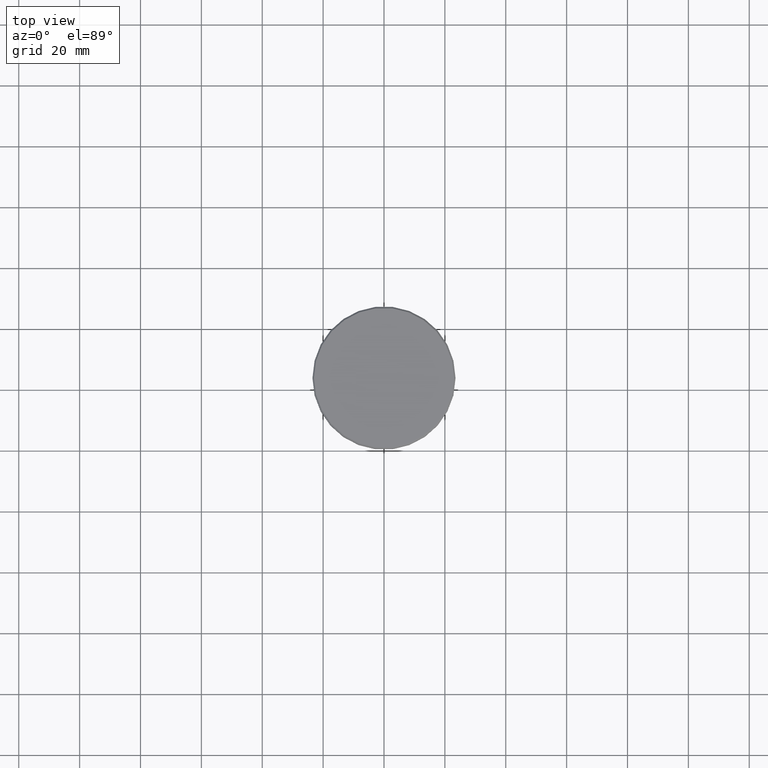
[diagram: clean part render]
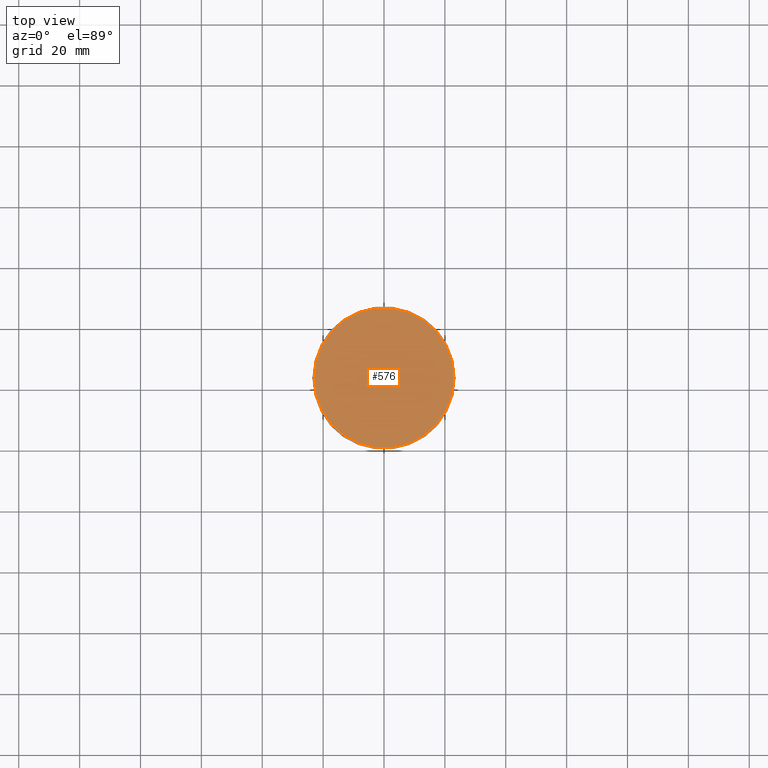
[diagram: same view with one face highlighted and labeled with its STEP entity id]
A machine part, top view. The second image highlights one B-rep face of the part: STEP entity #576.
In plain terms, the highlighted planar face has unit normal (0, -0, 1).
Its self-contained STEP definition (entity closure, byte-faithful):
#169 = CARTESIAN_POINT ( 'NONE',  ( 0.000000000000000000, 0.000000000000000000, 0.000000000000000000 ) ) ;
#187 = ORIENTED_EDGE ( 'NONE', *, *, #561, .T. ) ;
#197 = VERTEX_POINT ( 'NONE', #960 ) ;
#334 = DIRECTION ( 'NONE',  ( -0.000000000000000000, -0.000000000000000000, 1.000000000000000000 ) ) ;
#344 = PLANE ( 'NONE',  #1000 ) ;
#437 = DIRECTION ( 'NONE',  ( 1.000000000000000000, 0.000000000000000000, 0.000000000000000000 ) ) ;
#485 = CIRCLE ( 'NONE', #924, 22.99999999999991118 ) ;
#522 = FACE_OUTER_BOUND ( 'NONE', #572, .T. ) ;
#528 = CARTESIAN_POINT ( 'NONE',  ( -22.99999999999991118, 0.000000000000000000, 0.000000000000000000 ) ) ;
#561 = EDGE_CURVE ( 'NONE', #197, #918, #485, .T. ) ;
#562 = AXIS2_PLACEMENT_3D ( 'NONE', #1038, #949, #773 ) ;
#572 = EDGE_LOOP ( 'NONE', ( #706, #187 ) ) ;
#576 = ADVANCED_FACE ( 'NONE', ( #522 ), #344, .T. ) ;
#700 = DIRECTION ( 'NONE',  ( 1.000000000000000000, 0.000000000000000000, 0.000000000000000000 ) ) ;
#706 = ORIENTED_EDGE ( 'NONE', *, *, #775, .T. ) ;
#710 = DIRECTION ( 'NONE',  ( 0.000000000000000000, -0.000000000000000000, 1.000000000000000000 ) ) ;
#773 = DIRECTION ( 'NONE',  ( 1.000000000000000000, 0.000000000000000000, 0.000000000000000000 ) ) ;
#775 = EDGE_CURVE ( 'NONE', #918, #197, #853, .T. ) ;
#853 = CIRCLE ( 'NONE', #562, 22.99999999999991118 ) ;
#918 = VERTEX_POINT ( 'NONE', #528 ) ;
#924 = AXIS2_PLACEMENT_3D ( 'NONE', #169, #334, #700 ) ;
#949 = DIRECTION ( 'NONE',  ( -0.000000000000000000, -0.000000000000000000, 1.000000000000000000 ) ) ;
#960 = CARTESIAN_POINT ( 'NONE',  ( 22.99999999999991118, 2.847303808017590617E-15, 0.000000000000000000 ) ) ;
#1000 = AXIS2_PLACEMENT_3D ( 'NONE', #1065, #710, #437 ) ;
#1038 = CARTESIAN_POINT ( 'NONE',  ( 0.000000000000000000, 0.000000000000000000, 0.000000000000000000 ) ) ;
#1065 = CARTESIAN_POINT ( 'NONE',  ( 0.000000000000000000, 0.000000000000000000, 0.000000000000000000 ) ) ;